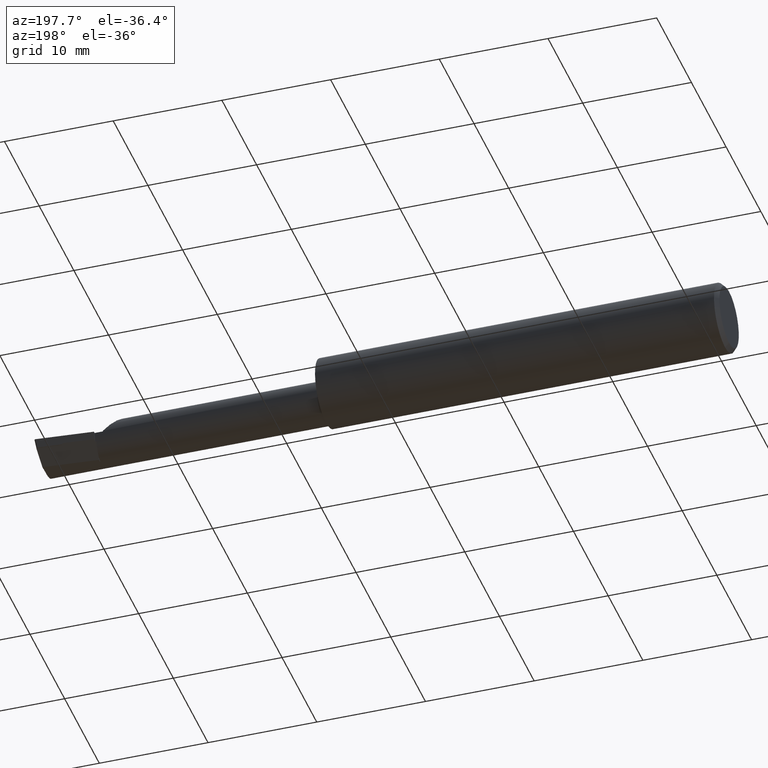
[diagram: clean part render]
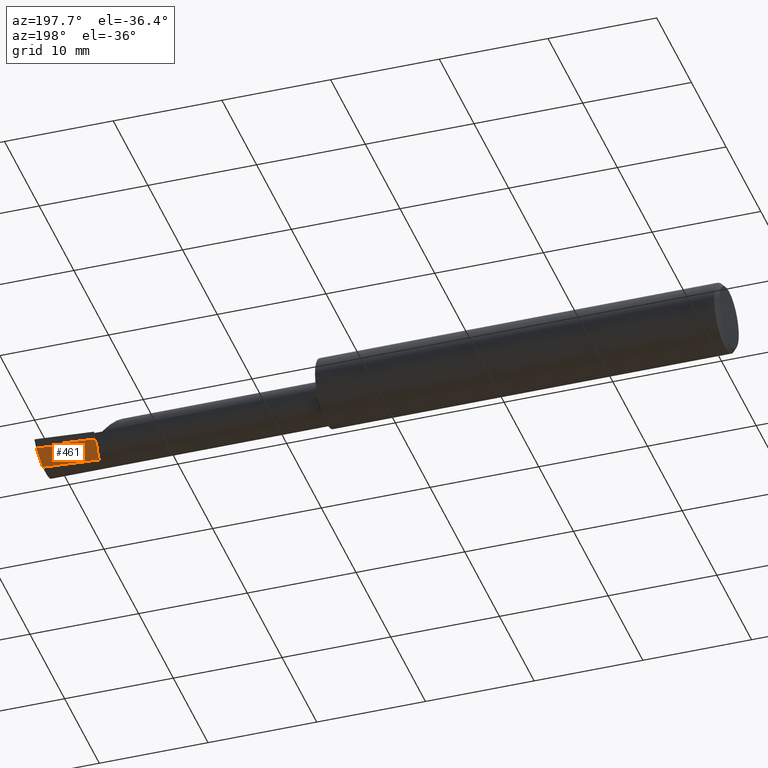
[diagram: same view with one face highlighted and labeled with its STEP entity id]
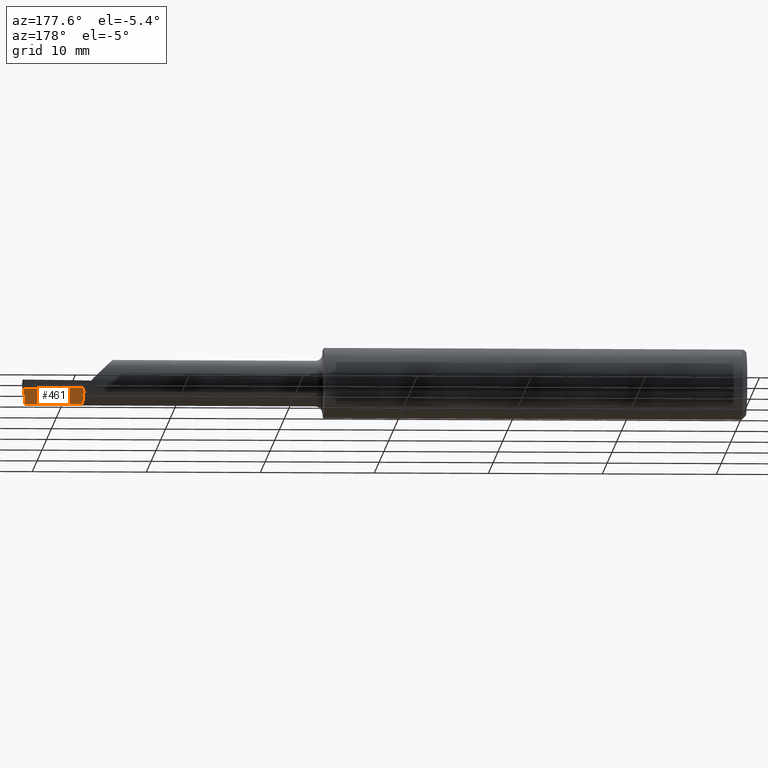
[diagram: same view with one face highlighted and labeled with its STEP entity id]
A machine part, auxiliary view. The second image highlights one B-rep face of the part: STEP entity #461.
A second angle (auxiliary view) of the same face is appended — the face is thin or edge-on in the first view.
In plain terms, the highlighted planar face has unit normal (0.0689, -0.716, 0.6947).
Its self-contained STEP definition (entity closure, byte-faithful):
#25 = VERTEX_POINT ( 'NONE', #1067 ) ;
#26 = ORIENTED_EDGE ( 'NONE', *, *, #466, .F. ) ;
#29 = VECTOR ( 'NONE', #1055, 39.37007874015748143 ) ;
#62 = CARTESIAN_POINT ( 'NONE',  ( 2.297673721434291494, -0.1060185356184528416, -0.1616783593159390742 ) ) ;
#63 = EDGE_LOOP ( 'NONE', ( #244, #65, #26, #797, #1155, #156, #530, #1301, #1017, #887, #202 ) ) ;
#65 = ORIENTED_EDGE ( 'NONE', *, *, #1123, .T. ) ;
#71 = DIRECTION ( 'NONE',  ( -0.06658005426111555936, 0.6914603011188269477, 0.7193398003386494155 ) ) ;
#88 = VERTEX_POINT ( 'NONE', #543 ) ;
#94 = EDGE_CURVE ( 'NONE', #88, #301, #1360, .T. ) ;
#147 = CARTESIAN_POINT ( 'NONE',  ( 2.290000000000000036, 0.02497684810692662322, -0.02589154684564926034 ) ) ;
#156 = ORIENTED_EDGE ( 'NONE', *, *, #1051, .T. ) ;
#161 = FACE_OUTER_BOUND ( 'NONE', #63, .T. ) ;
#165 = AXIS2_PLACEMENT_3D ( 'NONE', #199, #1420, #858 ) ;
#173 = DIRECTION ( 'NONE',  ( 0.000000000000000000, 0.6963153109074986524, 0.7177360153954889244 ) ) ;
#190 = EDGE_CURVE ( 'NONE', #1172, #1438, #1460, .T. ) ;
#199 = CARTESIAN_POINT ( 'NONE',  ( 2.297673721434291494, -0.1060185356184528416, -0.1616783593159390742 ) ) ;
#202 = ORIENTED_EDGE ( 'NONE', *, *, #1013, .T. ) ;
#223 = CARTESIAN_POINT ( 'NONE',  ( 2.288594910763313006, 0.01791252108964369247, -0.03303373654662771636 ) ) ;
#225 = VERTEX_POINT ( 'NONE', #997 ) ;
#239 = CARTESIAN_POINT ( 'NONE',  ( 2.287167223447292841, 0.01803548479585102837, -0.03276529046169183307 ) ) ;
#244 = ORIENTED_EDGE ( 'NONE', *, *, #94, .F. ) ;
#286 = VERTEX_POINT ( 'NONE', #1383 ) ;
#301 = VERTEX_POINT ( 'NONE', #147 ) ;
#310 = VECTOR ( 'NONE', #746, 39.37007874015748143 ) ;
#347 = VECTOR ( 'NONE', #1141, 39.37007874015748854 ) ;
#349 = DIRECTION ( 'NONE',  ( 0.9953961983671787417, 0.09584575252022463354, -0.000000000000000000 ) ) ;
#410 = VERTEX_POINT ( 'NONE', #1409 ) ;
#429 = CARTESIAN_POINT ( 'NONE',  ( 2.290021246697200752, -0.02654454682804252216, -0.07899999999999998690 ) ) ;
#441 = CARTESIAN_POINT ( 'NONE',  ( 2.280883032450030434, 0.02409898397909219364, -0.02589154684564926034 ) ) ;
#443 = VECTOR ( 'NONE', #836, 39.37007874015748854 ) ;
#446 = CARTESIAN_POINT ( 'NONE',  ( 2.289500683005420978, -0.01848753194819709178, -0.07064346111202184086 ) ) ;
#453 = CARTESIAN_POINT ( 'NONE',  ( 2.489404691688879456, -0.007346104683447489576, -0.07900000000000001465 ) ) ;
#461 = ADVANCED_FACE ( 'NONE', ( #161 ), #612, .F. ) ;
#466 = EDGE_CURVE ( 'NONE', #1069, #286, #1441, .T. ) ;
#495 = LINE ( 'NONE', #820, #443 ) ;
#516 = CARTESIAN_POINT ( 'NONE',  ( 2.297673721434291494, -0.1060185356184528416, -0.1616783593159390742 ) ) ;
#530 = ORIENTED_EDGE ( 'NONE', *, *, #1084, .T. ) ;
#543 = CARTESIAN_POINT ( 'NONE',  ( 2.402354631377179750, 0.03579536862282069187, -0.02589154684564915626 ) ) ;
#556 = CARTESIAN_POINT ( 'NONE',  ( 2.290000000000000036, 0.01778805432616575866, -0.03330148904120239922 ) ) ;
#557 = EDGE_CURVE ( 'NONE', #962, #410, #844, .T. ) ;
#574 = CARTESIAN_POINT ( 'NONE',  ( 2.285716982925383611, 0.01815694157993225435, -0.03249615922388704448 ) ) ;
#605 = CARTESIAN_POINT ( 'NONE',  ( 2.290000000000000036, 0.03800063496911013083, -0.01246711004037342509 ) ) ;
#612 = PLANE ( 'NONE',  #165 ) ;
#624 = LINE ( 'NONE', #605, #1015 ) ;
#661 = VECTOR ( 'NONE', #71, 39.37007874015748143 ) ;
#665 = CARTESIAN_POINT ( 'NONE',  ( 2.290000000000000036, -0.01839387631621009628, -0.07059648215966424223 ) ) ;
#695 = CARTESIAN_POINT ( 'NONE',  ( 2.289750697494797649, -0.01844069244940091737, -0.07061999492627854536 ) ) ;
#720 = DIRECTION ( 'NONE',  ( 0.000000000000000000, 0.6963153109074986524, 0.7177360153954889244 ) ) ;
#736 = CARTESIAN_POINT ( 'NONE',  ( 2.285485945498436866, 0.02055635699914985098, -0.03000000000000000583 ) ) ;
#742 = CARTESIAN_POINT ( 'NONE',  ( 2.289249956779253470, -0.01853439476625177995, -0.07066688069367470237 ) ) ;
#746 = DIRECTION ( 'NONE',  ( -0.9953961983671787417, -0.09584575252022463354, 0.000000000000000000 ) ) ;
#776 = CARTESIAN_POINT ( 'NONE',  ( 2.495465986398819336, -0.006762468384982540416, -0.07900000000000000078 ) ) ;
#786 = EDGE_CURVE ( 'NONE', #1438, #1069, #1414, .T. ) ;
#797 = ORIENTED_EDGE ( 'NONE', *, *, #786, .F. ) ;
#820 = CARTESIAN_POINT ( 'NONE',  ( 2.460510862526168463, -0.02236086252616861780, -0.09160890919974723490 ) ) ;
#836 = DIRECTION ( 'NONE',  ( 0.5524160538717100000, -0.5524160538717179936, -0.6242379408924189077 ) ) ;
#843 =( BOUNDED_CURVE ( )  B_SPLINE_CURVE ( 3, ( #913, #695, #446, #1146 ),
 .UNSPECIFIED., .F., .T. ) 
 B_SPLINE_CURVE_WITH_KNOTS ( ( 4, 4 ),
 ( 3.476702986424078823, 3.478692439327601527 ),
 .UNSPECIFIED. ) 
 CURVE ( )  GEOMETRIC_REPRESENTATION_ITEM ( )  RATIONAL_B_SPLINE_CURVE ( ( 1.000000000000000000, 0.9999996701731224125, 0.9999996701731224125, 1.000000000000000000 ) ) 
 REPRESENTATION_ITEM ( '' )  );
#844 = LINE ( 'NONE', #516, #1333 ) ;
#848 = CARTESIAN_POINT ( 'NONE',  ( 2.470337760695803908, -0.1414426899193332587, -0.2153293746837219025 ) ) ;
#855 = LINE ( 'NONE', #1318, #1462 ) ;
#858 = DIRECTION ( 'NONE',  ( 0.000000000000000000, -0.6963153109074986524, -0.7177360153954889244 ) ) ;
#887 = ORIENTED_EDGE ( 'NONE', *, *, #1416, .T. ) ;
#913 = CARTESIAN_POINT ( 'NONE',  ( 2.290000000000000036, -0.01839387631621009628, -0.07059648215966424223 ) ) ;
#962 = VERTEX_POINT ( 'NONE', #742 ) ;
#997 = CARTESIAN_POINT ( 'NONE',  ( 2.290000000000000036, 0.01778805432616575866, -0.03330148904120239922 ) ) ;
#1000 =( BOUNDED_CURVE ( )  B_SPLINE_CURVE ( 3, ( #574, #239, #223, #556 ),
 .UNSPECIFIED., .F., .T. ) 
 B_SPLINE_CURVE_WITH_KNOTS ( ( 4, 4 ),
 ( 2.795269658945859437, 2.806482320755506077 ),
 .UNSPECIFIED. ) 
 CURVE ( )  GEOMETRIC_REPRESENTATION_ITEM ( )  RATIONAL_B_SPLINE_CURVE ( ( 1.000000000000000000, 0.9999895230453701434, 0.9999895230453701434, 1.000000000000000000 ) ) 
 REPRESENTATION_ITEM ( '' )  );
#1013 = EDGE_CURVE ( 'NONE', #225, #301, #855, .T. ) ;
#1015 = VECTOR ( 'NONE', #173, 39.37007874015748143 ) ;
#1017 = ORIENTED_EDGE ( 'NONE', *, *, #557, .T. ) ;
#1051 = EDGE_CURVE ( 'NONE', #1172, #25, #1059, .T. ) ;
#1055 = DIRECTION ( 'NONE',  ( 0.09921662170349938858, 0.6977845660589908627, 0.7094031021553334204 ) ) ;
#1059 = LINE ( 'NONE', #62, #661 ) ;
#1067 = CARTESIAN_POINT ( 'NONE',  ( 2.290000000000000036, -0.02632389144097146971, -0.07877044784520162435 ) ) ;
#1069 = VERTEX_POINT ( 'NONE', #1410 ) ;
#1084 = EDGE_CURVE ( 'NONE', #25, #1411, #624, .T. ) ;
#1123 = EDGE_CURVE ( 'NONE', #88, #286, #495, .T. ) ;
#1141 = DIRECTION ( 'NONE',  ( -0.9953961983671786307, -0.09584575252022492498, -2.820887537821590409E-16 ) ) ;
#1146 = CARTESIAN_POINT ( 'NONE',  ( 2.289249956779253470, -0.01853439476625177995, -0.07066688069367470237 ) ) ;
#1155 = ORIENTED_EDGE ( 'NONE', *, *, #190, .F. ) ;
#1172 = VERTEX_POINT ( 'NONE', #429 ) ;
#1234 = VECTOR ( 'NONE', #349, 39.37007874015748143 ) ;
#1301 = ORIENTED_EDGE ( 'NONE', *, *, #1375, .T. ) ;
#1305 = DIRECTION ( 'NONE',  ( -0.06658005426111555936, 0.6914603011188269477, 0.7193398003386494155 ) ) ;
#1318 = CARTESIAN_POINT ( 'NONE',  ( 2.290000000000000036, 0.03800063496911013083, -0.01246711004037342509 ) ) ;
#1333 = VECTOR ( 'NONE', #1305, 39.37007874015748143 ) ;
#1360 = LINE ( 'NONE', #441, #347 ) ;
#1375 = EDGE_CURVE ( 'NONE', #1411, #962, #843, .T. ) ;
#1383 = CARTESIAN_POINT ( 'NONE',  ( 2.405990385198549131, 0.03215961480145142909, -0.03000000000000000583 ) ) ;
#1409 = CARTESIAN_POINT ( 'NONE',  ( 2.285716982925383611, 0.01815694157993225435, -0.03249615922388704448 ) ) ;
#1410 = CARTESIAN_POINT ( 'NONE',  ( 2.496257797417767321, 0.04085137800729487373, -0.02999999999999995379 ) ) ;
#1411 = VERTEX_POINT ( 'NONE', #665 ) ;
#1414 = LINE ( 'NONE', #848, #29 ) ;
#1416 = EDGE_CURVE ( 'NONE', #410, #225, #1000, .T. ) ;
#1420 = DIRECTION ( 'NONE',  ( 0.06894566448120600932, -0.7160281025912971220, 0.6946583704589990305 ) ) ;
#1438 = VERTEX_POINT ( 'NONE', #453 ) ;
#1441 = LINE ( 'NONE', #736, #310 ) ;
#1460 = LINE ( 'NONE', #776, #1234 ) ;
#1462 = VECTOR ( 'NONE', #720, 39.37007874015748143 ) ;